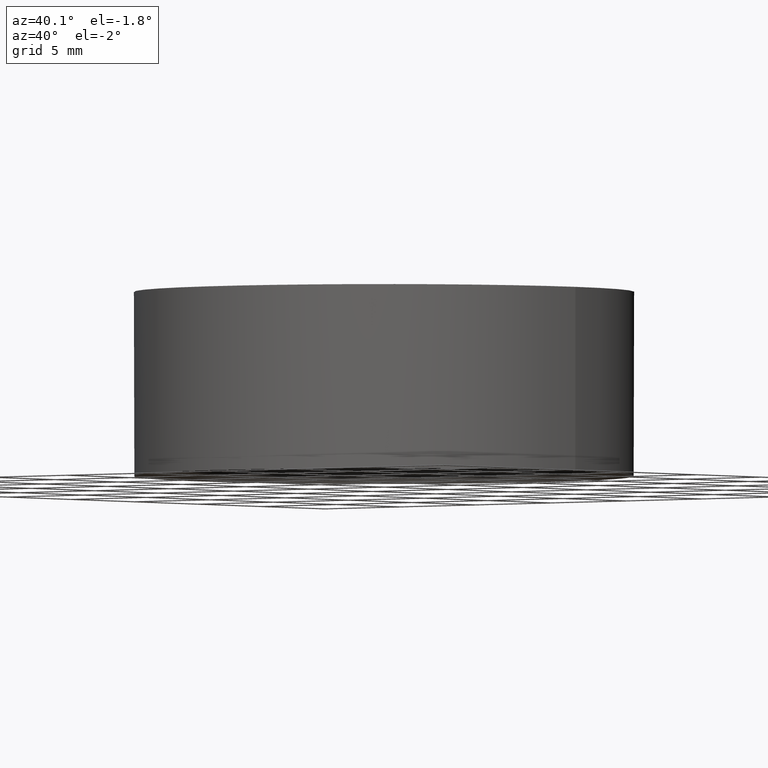
[diagram: clean part render]
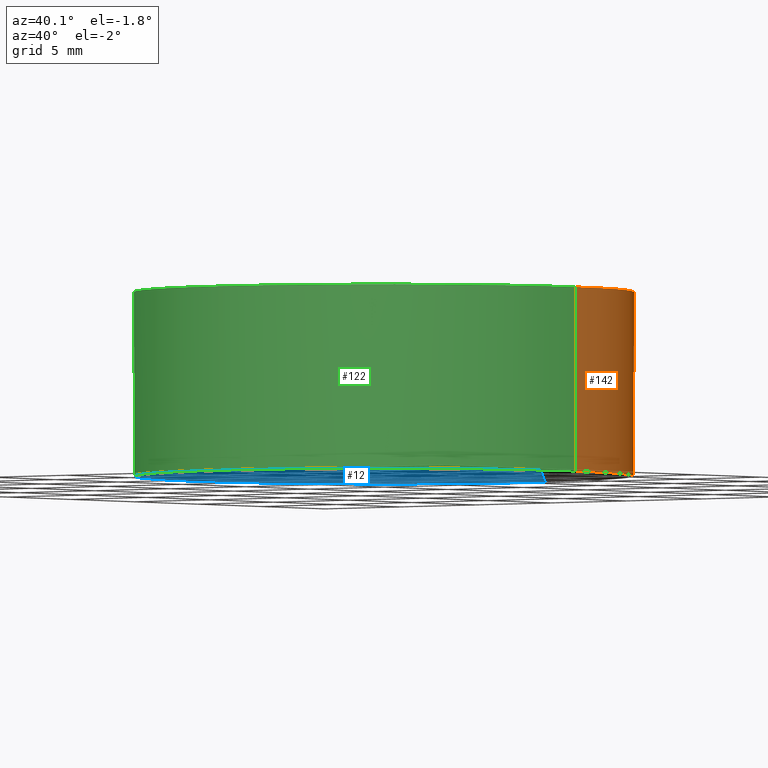
[diagram: same view with three faces highlighted in distinct colors, each labeled with its STEP entity id]
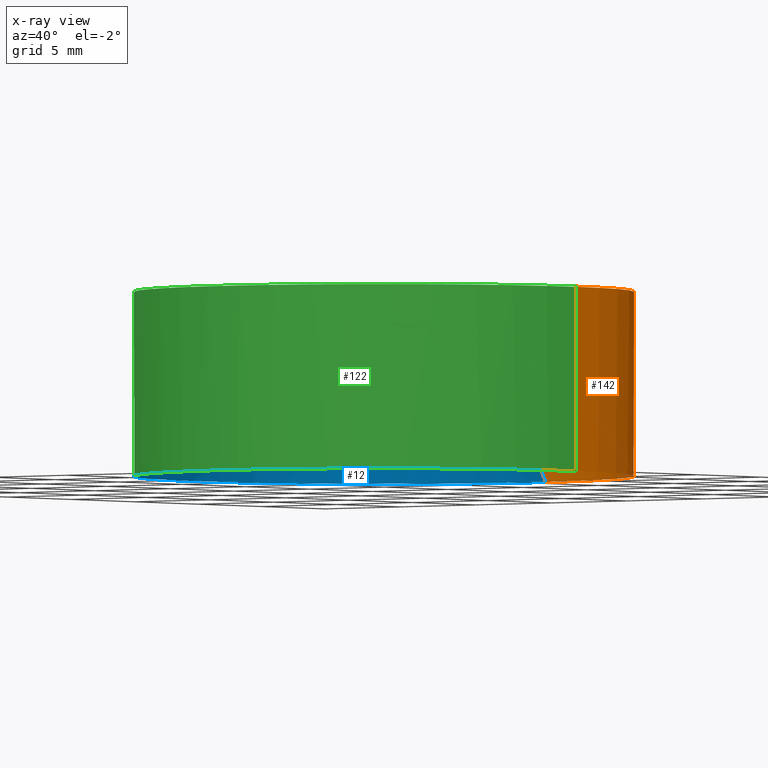
[diagram: x-ray of the same camera — body ghosted, the three highlighted faces saturated]
A machine part, auxiliary view with three faces highlighted in distinct colors.
The next image is the same camera in x-ray (body ghosted, the three faces saturated) — at least one of them is partly hidden behind the body in this view.
Their STEP definitions:

[orange] entity #142 — the highlighted cylindrical surface (partial cylindrical patch) has radius 12.7 mm, axis along (0, 0, 1).
#1 = CARTESIAN_POINT ( 'NONE',  ( 12.69999999999999900, 2.442490654175340100E-015, 1.599999999999999900 ) ) ;
#8 = EDGE_CURVE ( 'NONE', #115, #34, #9, .T. ) ;
#9 = LINE ( 'NONE', #139, #192 ) ;
#13 = DIRECTION ( 'NONE',  ( 0.0000000000000000000, 0.0000000000000000000, 1.000000000000000000 ) ) ;
#15 = CARTESIAN_POINT ( 'NONE',  ( 12.69999999999999900, 2.442490654175340100E-015, -7.750957191134370200 ) ) ;
#23 = AXIS2_PLACEMENT_3D ( 'NONE', #235, #232, #123 ) ;
#24 = CYLINDRICAL_SURFACE ( 'NONE', #230, 12.69999999999999900 ) ;
#32 = DIRECTION ( 'NONE',  ( 1.000000000000000000, 0.0000000000000000000, 0.0000000000000000000 ) ) ;
#33 = DIRECTION ( 'NONE',  ( -0.0000000000000000000, -0.0000000000000000000, -1.000000000000000000 ) ) ;
#34 = VERTEX_POINT ( 'NONE', #81 ) ;
#43 = DIRECTION ( 'NONE',  ( 0.0000000000000000000, 0.0000000000000000000, 1.000000000000000000 ) ) ;
#45 = VERTEX_POINT ( 'NONE', #48 ) ;
#46 = DIRECTION ( 'NONE',  ( 1.000000000000000000, 0.0000000000000000000, 0.0000000000000000000 ) ) ;
#48 = CARTESIAN_POINT ( 'NONE',  ( 4.665657008817360900E-015, 12.69999999999999900, -7.750957191134371100 ) ) ;
#55 = AXIS2_PLACEMENT_3D ( 'NONE', #159, #219, #46 ) ;
#71 = CIRCLE ( 'NONE', #55, 12.69999999999999900 ) ;
#74 = EDGE_CURVE ( 'NONE', #131, #45, #199, .T. ) ;
#75 = LINE ( 'NONE', #15, #204 ) ;
#78 = VERTEX_POINT ( 'NONE', #1 ) ;
#81 = CARTESIAN_POINT ( 'NONE',  ( -12.69999999999999900, 3.997792089092478900E-015, 1.599999999999999900 ) ) ;
#85 = ORIENTED_EDGE ( 'NONE', *, *, #174, .F. ) ;
#86 = CARTESIAN_POINT ( 'NONE',  ( 4.996003610813200500E-016, 2.442490654175340100E-015, 1.599999999999999900 ) ) ;
#94 = ORIENTED_EDGE ( 'NONE', *, *, #74, .T. ) ;
#106 = EDGE_CURVE ( 'NONE', #45, #115, #71, .T. ) ;
#115 = VERTEX_POINT ( 'NONE', #233 ) ;
#123 = DIRECTION ( 'NONE',  ( 1.000000000000000000, 0.0000000000000000000, 0.0000000000000000000 ) ) ;
#131 = VERTEX_POINT ( 'NONE', #179 ) ;
#136 = FACE_OUTER_BOUND ( 'NONE', #205, .T. ) ;
#139 = CARTESIAN_POINT ( 'NONE',  ( -12.69999999999999900, 3.997792089092478900E-015, -7.750957191134370200 ) ) ;
#142 = ADVANCED_FACE ( 'NONE', ( #136 ), #24, .T. ) ;
#143 = DIRECTION ( 'NONE',  ( 1.000000000000000000, 0.0000000000000000000, 0.0000000000000000000 ) ) ;
#158 = ORIENTED_EDGE ( 'NONE', *, *, #106, .T. ) ;
#159 = CARTESIAN_POINT ( 'NONE',  ( 4.996003610813200500E-016, 2.442490654175340100E-015, -7.750957191134370200 ) ) ;
#173 = ORIENTED_EDGE ( 'NONE', *, *, #8, .T. ) ;
#174 = EDGE_CURVE ( 'NONE', #131, #78, #75, .T. ) ;
#179 = CARTESIAN_POINT ( 'NONE',  ( 12.69999999999999900, 2.442490654175340100E-015, -7.750957191134370200 ) ) ;
#182 = ORIENTED_EDGE ( 'NONE', *, *, #196, .T. ) ;
#191 = CIRCLE ( 'NONE', #201, 12.69999999999999900 ) ;
#192 = VECTOR ( 'NONE', #43, 1000.000000000000000 ) ;
#193 = DIRECTION ( 'NONE',  ( 0.0000000000000000000, 0.0000000000000000000, 1.000000000000000000 ) ) ;
#196 = EDGE_CURVE ( 'NONE', #34, #78, #191, .T. ) ;
#199 = CIRCLE ( 'NONE', #23, 12.69999999999999900 ) ;
#201 = AXIS2_PLACEMENT_3D ( 'NONE', #86, #33, #32 ) ;
#204 = VECTOR ( 'NONE', #193, 1000.000000000000000 ) ;
#205 = EDGE_LOOP ( 'NONE', ( #94, #158, #173, #182, #85 ) ) ;
#218 = CARTESIAN_POINT ( 'NONE',  ( 4.996003610813200500E-016, 2.442490654175340100E-015, -7.750957191134370200 ) ) ;
#219 = DIRECTION ( 'NONE',  ( 0.0000000000000000000, 0.0000000000000000000, 1.000000000000000000 ) ) ;
#230 = AXIS2_PLACEMENT_3D ( 'NONE', #218, #13, #143 ) ;
#232 = DIRECTION ( 'NONE',  ( 0.0000000000000000000, 0.0000000000000000000, 1.000000000000000000 ) ) ;
#233 = CARTESIAN_POINT ( 'NONE',  ( -12.69999999999999900, 3.997792089092478900E-015, -7.750957191134370200 ) ) ;
#235 = CARTESIAN_POINT ( 'NONE',  ( 4.996003610813200500E-016, 2.442490654175340100E-015, -7.750957191134370200 ) ) ;

[blue] entity #12 — the highlighted face is a freeform B-spline surface patch.
#2 =( BOUNDED_SURFACE ( )  B_SPLINE_SURFACE ( 3, 3, ( 
 ( #121, #209, #140, #177 ),
 ( #26, #63, #99, #80 ),
 ( #11, #138, #25, #28 ),
 ( #211, #62, #119, #154 ) ),
 .UNSPECIFIED., .F., .F., .T. ) 
 B_SPLINE_SURFACE_WITH_KNOTS ( ( 4, 4 ),
 ( 4, 4 ),
 ( 0.0000000000000000000, 1.000000000000000000 ),
 ( 0.0000000000000000000, 1.000000000000000000 ),
 .UNSPECIFIED. ) 
 GEOMETRIC_REPRESENTATION_ITEM ( )  RATIONAL_B_SPLINE_SURFACE ( (
 ( 1.000000000000000000, 0.9012452960969777900, 0.9012452960969777900, 1.000000000000000000),
 ( 0.6303203853792274100, 0.5680732823570630000, 0.5680732823570630000, 0.6303203853792274100),
 ( 0.6303203853792274100, 0.5680732823570630000, 0.5680732823570630000, 0.6303203853792274100),
 ( 1.000000000000000000, 0.9012452960969777900, 0.9012452960969777900, 1.000000000000000000) ) ) 
 REPRESENTATION_ITEM ( '' )  SURFACE ( )  );
#11 = CARTESIAN_POINT ( 'NONE',  ( -16.47940858383782000, -6.760987157577682500, -5.944513525790873700 ) ) ;
#12 = ADVANCED_FACE ( 'NONE', ( #22 ), #2, .F. ) ;
#16 = CARTESIAN_POINT ( 'NONE',  ( 4.996003610813200500E-016, 2.442490654175340100E-015, -7.750957191134370200 ) ) ;
#22 = FACE_OUTER_BOUND ( 'NONE', #124, .T. ) ;
#25 = CARTESIAN_POINT ( 'NONE',  ( -7.154924903406700000, -6.760987157577680800, 4.187572716380210600 ) ) ;
#26 = CARTESIAN_POINT ( 'NONE',  ( -16.47940858383782000, 6.760987157577674500, -5.944513525790876300 ) ) ;
#28 = CARTESIAN_POINT ( 'NONE',  ( -3.469446951953614200E-015, -6.760987157577681600, 4.187572716380210600 ) ) ;
#31 = DIRECTION ( 'NONE',  ( 0.0000000000000000000, 0.0000000000000000000, 1.000000000000000000 ) ) ;
#35 = CARTESIAN_POINT ( 'NONE',  ( 0.0000000000000000000, -8.881784197001250400E-016, -14.27999999999999900 ) ) ;
#45 = VERTEX_POINT ( 'NONE', #48 ) ;
#46 = DIRECTION ( 'NONE',  ( 1.000000000000000000, 0.0000000000000000000, 0.0000000000000000000 ) ) ;
#48 = CARTESIAN_POINT ( 'NONE',  ( 4.665657008817360900E-015, 12.69999999999999900, -7.750957191134371100 ) ) ;
#51 = VERTEX_POINT ( 'NONE', #107 ) ;
#55 = AXIS2_PLACEMENT_3D ( 'NONE', #159, #219, #46 ) ;
#62 = CARTESIAN_POINT ( 'NONE',  ( -4.564174688786525100, -12.78476409212511600, -9.209405170684052100 ) ) ;
#63 = CARTESIAN_POINT ( 'NONE',  ( -13.24997607138696600, 6.760987157577676300, 0.4401333728962196200 ) ) ;
#65 = ORIENTED_EDGE ( 'NONE', *, *, #106, .F. ) ;
#67 = CIRCLE ( 'NONE', #100, 14.27999999999999900 ) ;
#71 = CIRCLE ( 'NONE', #55, 12.69999999999999900 ) ;
#79 = AXIS2_PLACEMENT_3D ( 'NONE', #16, #31, #161 ) ;
#80 = CARTESIAN_POINT ( 'NONE',  ( 1.734723475976807100E-015, 6.760987157577674500, 4.187572716380212300 ) ) ;
#99 = CARTESIAN_POINT ( 'NONE',  ( -7.154924903406697300, 6.760987157577676300, 4.187572716380212300 ) ) ;
#100 = AXIS2_PLACEMENT_3D ( 'NONE', #35, #222, #114 ) ;
#106 = EDGE_CURVE ( 'NONE', #45, #115, #71, .T. ) ;
#107 = CARTESIAN_POINT ( 'NONE',  ( -1.795195845620097900E-015, -12.69999999999999900, -7.750957191134370200 ) ) ;
#114 = DIRECTION ( 'NONE',  ( 2.543642856077738600E-016, 1.000000000000000000, -4.859169400495258500E-016 ) ) ;
#115 = VERTEX_POINT ( 'NONE', #233 ) ;
#119 = CARTESIAN_POINT ( 'NONE',  ( -2.464632914682606900, -12.78476409212511600, -7.918537345176949800 ) ) ;
#120 = CIRCLE ( 'NONE', #79, 12.69999999999999900 ) ;
#121 = CARTESIAN_POINT ( 'NONE',  ( -5.676606443610793000, 12.78476409212510800, -11.40870301204058600 ) ) ;
#124 = EDGE_LOOP ( 'NONE', ( #65, #215, #172 ) ) ;
#138 = CARTESIAN_POINT ( 'NONE',  ( -13.24997607138696600, -6.760987157577680800, 0.4401333728962214000 ) ) ;
#140 = CARTESIAN_POINT ( 'NONE',  ( -2.464632914682609600, 12.78476409212510800, -7.918537345176949800 ) ) ;
#154 = CARTESIAN_POINT ( 'NONE',  ( -3.469446951953614200E-015, -12.78476409212511400, -7.918537345176949000 ) ) ;
#159 = CARTESIAN_POINT ( 'NONE',  ( 4.996003610813200500E-016, 2.442490654175340100E-015, -7.750957191134370200 ) ) ;
#161 = DIRECTION ( 'NONE',  ( 1.000000000000000000, 0.0000000000000000000, 0.0000000000000000000 ) ) ;
#172 = ORIENTED_EDGE ( 'NONE', *, *, #184, .F. ) ;
#177 = CARTESIAN_POINT ( 'NONE',  ( 0.0000000000000000000, 12.78476409212510800, -7.918537345176947200 ) ) ;
#184 = EDGE_CURVE ( 'NONE', #115, #51, #120, .T. ) ;
#208 = EDGE_CURVE ( 'NONE', #45, #51, #67, .T. ) ;
#209 = CARTESIAN_POINT ( 'NONE',  ( -4.564174688786531300, 12.78476409212510800, -9.209405170684052100 ) ) ;
#211 = CARTESIAN_POINT ( 'NONE',  ( -5.676606443610784100, -12.78476409212511400, -11.40870301204057900 ) ) ;
#215 = ORIENTED_EDGE ( 'NONE', *, *, #208, .T. ) ;
#219 = DIRECTION ( 'NONE',  ( 0.0000000000000000000, 0.0000000000000000000, 1.000000000000000000 ) ) ;
#222 = DIRECTION ( 'NONE',  ( 1.000000000000000000, -2.543642856077740100E-016, -2.198225105293790000E-016 ) ) ;
#233 = CARTESIAN_POINT ( 'NONE',  ( -12.69999999999999900, 3.997792089092478900E-015, -7.750957191134370200 ) ) ;

[green] entity #122 — the highlighted cylindrical surface (partial cylindrical patch) has radius 12.7 mm, axis along (0, 0, 1).
#1 = CARTESIAN_POINT ( 'NONE',  ( 12.69999999999999900, 2.442490654175340100E-015, 1.599999999999999900 ) ) ;
#8 = EDGE_CURVE ( 'NONE', #115, #34, #9, .T. ) ;
#9 = LINE ( 'NONE', #139, #192 ) ;
#15 = CARTESIAN_POINT ( 'NONE',  ( 12.69999999999999900, 2.442490654175340100E-015, -7.750957191134370200 ) ) ;
#16 = CARTESIAN_POINT ( 'NONE',  ( 4.996003610813200500E-016, 2.442490654175340100E-015, -7.750957191134370200 ) ) ;
#31 = DIRECTION ( 'NONE',  ( 0.0000000000000000000, 0.0000000000000000000, 1.000000000000000000 ) ) ;
#34 = VERTEX_POINT ( 'NONE', #81 ) ;
#37 = DIRECTION ( 'NONE',  ( 0.0000000000000000000, 0.0000000000000000000, 1.000000000000000000 ) ) ;
#38 = ORIENTED_EDGE ( 'NONE', *, *, #174, .T. ) ;
#40 = CARTESIAN_POINT ( 'NONE',  ( 4.996003610813200500E-016, 2.442490654175340100E-015, 1.599999999999999900 ) ) ;
#41 = CIRCLE ( 'NONE', #82, 12.69999999999999900 ) ;
#43 = DIRECTION ( 'NONE',  ( 0.0000000000000000000, 0.0000000000000000000, 1.000000000000000000 ) ) ;
#51 = VERTEX_POINT ( 'NONE', #107 ) ;
#72 = ORIENTED_EDGE ( 'NONE', *, *, #184, .T. ) ;
#75 = LINE ( 'NONE', #15, #204 ) ;
#76 = AXIS2_PLACEMENT_3D ( 'NONE', #40, #169, #220 ) ;
#78 = VERTEX_POINT ( 'NONE', #1 ) ;
#79 = AXIS2_PLACEMENT_3D ( 'NONE', #16, #31, #161 ) ;
#81 = CARTESIAN_POINT ( 'NONE',  ( -12.69999999999999900, 3.997792089092478900E-015, 1.599999999999999900 ) ) ;
#82 = AXIS2_PLACEMENT_3D ( 'NONE', #132, #37, #127 ) ;
#98 = ORIENTED_EDGE ( 'NONE', *, *, #212, .T. ) ;
#104 = CYLINDRICAL_SURFACE ( 'NONE', #225, 12.69999999999999900 ) ;
#107 = CARTESIAN_POINT ( 'NONE',  ( -1.795195845620097900E-015, -12.69999999999999900, -7.750957191134370200 ) ) ;
#108 = CARTESIAN_POINT ( 'NONE',  ( 4.996003610813200500E-016, 2.442490654175340100E-015, -7.750957191134370200 ) ) ;
#115 = VERTEX_POINT ( 'NONE', #233 ) ;
#120 = CIRCLE ( 'NONE', #79, 12.69999999999999900 ) ;
#122 = ADVANCED_FACE ( 'NONE', ( #141 ), #104, .T. ) ;
#126 = DIRECTION ( 'NONE',  ( 0.0000000000000000000, 0.0000000000000000000, 1.000000000000000000 ) ) ;
#127 = DIRECTION ( 'NONE',  ( 1.000000000000000000, 0.0000000000000000000, 0.0000000000000000000 ) ) ;
#131 = VERTEX_POINT ( 'NONE', #179 ) ;
#132 = CARTESIAN_POINT ( 'NONE',  ( 4.996003610813200500E-016, 2.442490654175340100E-015, -7.750957191134370200 ) ) ;
#139 = CARTESIAN_POINT ( 'NONE',  ( -12.69999999999999900, 3.997792089092478900E-015, -7.750957191134370200 ) ) ;
#141 = FACE_OUTER_BOUND ( 'NONE', #229, .T. ) ;
#151 = ORIENTED_EDGE ( 'NONE', *, *, #234, .T. ) ;
#161 = DIRECTION ( 'NONE',  ( 1.000000000000000000, 0.0000000000000000000, 0.0000000000000000000 ) ) ;
#167 = CIRCLE ( 'NONE', #76, 12.69999999999999900 ) ;
#169 = DIRECTION ( 'NONE',  ( -0.0000000000000000000, -0.0000000000000000000, -1.000000000000000000 ) ) ;
#174 = EDGE_CURVE ( 'NONE', #131, #78, #75, .T. ) ;
#179 = CARTESIAN_POINT ( 'NONE',  ( 12.69999999999999900, 2.442490654175340100E-015, -7.750957191134370200 ) ) ;
#184 = EDGE_CURVE ( 'NONE', #115, #51, #120, .T. ) ;
#188 = ORIENTED_EDGE ( 'NONE', *, *, #8, .F. ) ;
#190 = DIRECTION ( 'NONE',  ( 1.000000000000000000, 0.0000000000000000000, 0.0000000000000000000 ) ) ;
#192 = VECTOR ( 'NONE', #43, 1000.000000000000000 ) ;
#193 = DIRECTION ( 'NONE',  ( 0.0000000000000000000, 0.0000000000000000000, 1.000000000000000000 ) ) ;
#204 = VECTOR ( 'NONE', #193, 1000.000000000000000 ) ;
#212 = EDGE_CURVE ( 'NONE', #78, #34, #167, .T. ) ;
#220 = DIRECTION ( 'NONE',  ( 1.000000000000000000, 0.0000000000000000000, 0.0000000000000000000 ) ) ;
#225 = AXIS2_PLACEMENT_3D ( 'NONE', #108, #126, #190 ) ;
#229 = EDGE_LOOP ( 'NONE', ( #188, #72, #151, #38, #98 ) ) ;
#233 = CARTESIAN_POINT ( 'NONE',  ( -12.69999999999999900, 3.997792089092478900E-015, -7.750957191134370200 ) ) ;
#234 = EDGE_CURVE ( 'NONE', #51, #131, #41, .T. ) ;